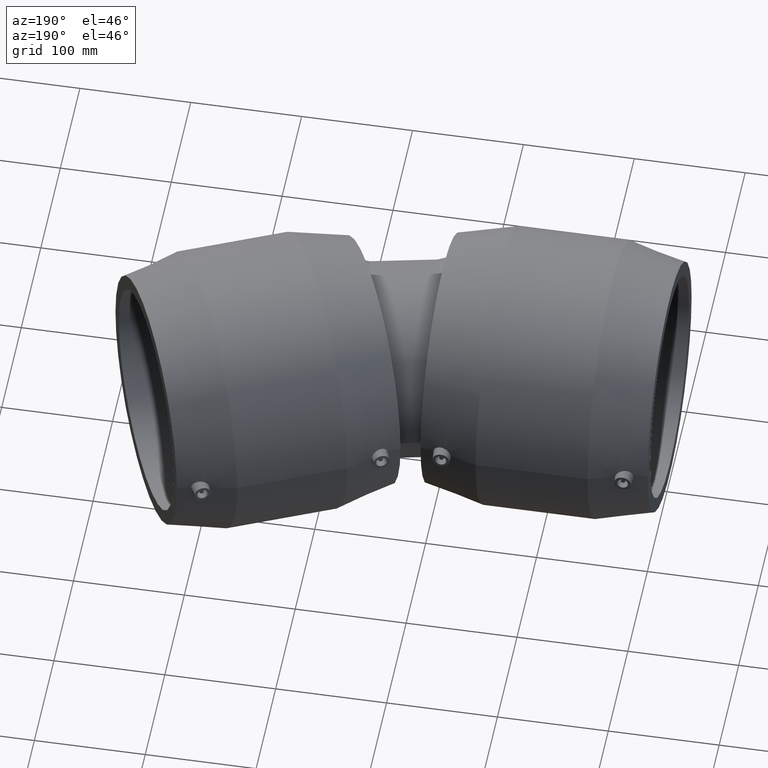
[diagram: clean part render]
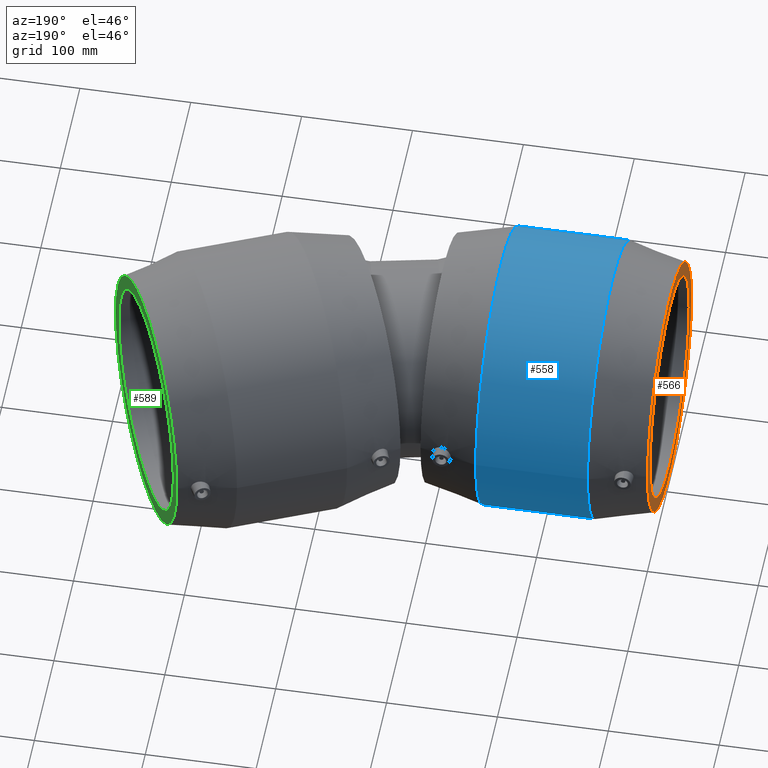
[diagram: same view with three faces highlighted in distinct colors, each labeled with its STEP entity id]
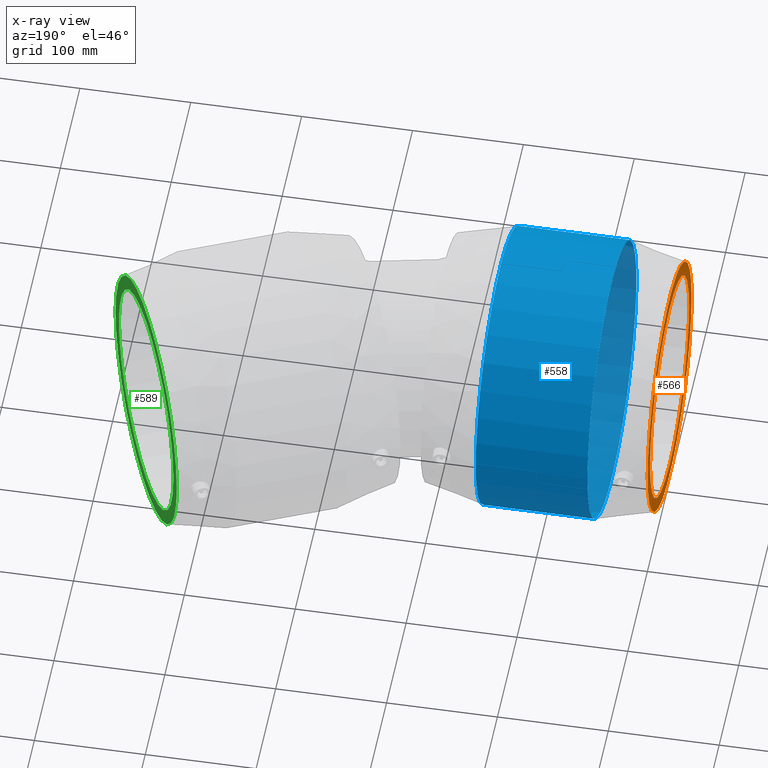
[diagram: x-ray of the same camera — body ghosted, the three highlighted faces saturated]
A machine part, auxiliary view with three faces highlighted in distinct colors.
The next image is the same camera in x-ray (body ghosted, the three faces saturated) — at least one of them is partly hidden behind the body in this view.
Their STEP definitions:

[orange] entity #566 — the highlighted planar face has unit normal (-1, -0, 0).
#34=PLANE('',#644);
#87=FACE_BOUND('',#213,.T.);
#138=FACE_OUTER_BOUND('',#212,.T.);
#212=EDGE_LOOP('',(#485));
#213=EDGE_LOOP('',(#486));
#296=CIRCLE('',#643,100.);
#297=CIRCLE('',#645,112.5);
#347=VERTEX_POINT('',#1238);
#348=VERTEX_POINT('',#1241);
#402=EDGE_CURVE('',#347,#347,#296,.T.);
#403=EDGE_CURVE('',#348,#348,#297,.T.);
#485=ORIENTED_EDGE('',*,*,#403,.F.);
#486=ORIENTED_EDGE('',*,*,#402,.T.);
#566=ADVANCED_FACE('',(#138,#87),#34,.T.);
#643=AXIS2_PLACEMENT_3D('',#1239,#793,#794);
#644=AXIS2_PLACEMENT_3D('',#1240,#795,#796);
#645=AXIS2_PLACEMENT_3D('',#1242,#797,#798);
#793=DIRECTION('center_axis',(1.,1.83697019872103E-16,0.));
#794=DIRECTION('ref_axis',(0.,0.,-1.));
#795=DIRECTION('center_axis',(-1.,-1.83697019872103E-16,0.));
#796=DIRECTION('ref_axis',(0.,0.,1.));
#797=DIRECTION('center_axis',(1.,1.83697019872103E-16,0.));
#798=DIRECTION('ref_axis',(0.,0.,-1.));
#1238=CARTESIAN_POINT('',(-102.4,100.,0.));
#1239=CARTESIAN_POINT('Origin',(-102.4,9.86076131526265E-31,0.));
#1240=CARTESIAN_POINT('Origin',(-102.4,112.5,0.));
#1241=CARTESIAN_POINT('',(-102.4,112.5,0.));
#1242=CARTESIAN_POINT('Origin',(-102.4,4.93038065763132E-30,0.));

[blue] entity #558 — the highlighted cylindrical surface (bore or boss wall) has radius 125 mm, axis along (1, 0, 0).
#52=CYLINDRICAL_SURFACE('',#628,125.);
#78=FACE_BOUND('',#196,.T.);
#130=FACE_OUTER_BOUND('',#195,.T.);
#195=EDGE_LOOP('',(#467));
#196=EDGE_LOOP('',(#468));
#289=CIRCLE('',#629,125.);
#290=CIRCLE('',#630,125.);
#340=VERTEX_POINT('',#1217);
#341=VERTEX_POINT('',#1219);
#395=EDGE_CURVE('',#340,#340,#289,.T.);
#396=EDGE_CURVE('',#341,#341,#290,.T.);
#467=ORIENTED_EDGE('',*,*,#395,.F.);
#468=ORIENTED_EDGE('',*,*,#396,.T.);
#558=ADVANCED_FACE('',(#130,#78),#52,.T.);
#628=AXIS2_PLACEMENT_3D('',#1216,#763,#764);
#629=AXIS2_PLACEMENT_3D('',#1218,#765,#766);
#630=AXIS2_PLACEMENT_3D('',#1220,#767,#768);
#763=DIRECTION('center_axis',(1.,1.83697019872103E-16,0.));
#764=DIRECTION('ref_axis',(-1.88286226120913E-16,1.,0.));
#765=DIRECTION('center_axis',(1.,1.83697019872103E-16,0.));
#766=DIRECTION('ref_axis',(0.,0.,-1.));
#767=DIRECTION('center_axis',(1.,1.83697019872103E-16,0.));
#768=DIRECTION('ref_axis',(0.,0.,-1.));
#1216=CARTESIAN_POINT('Origin',(0.,1.88105748349034E-14,0.));
#1217=CARTESIAN_POINT('',(50.4,125.,0.));
#1218=CARTESIAN_POINT('Origin',(50.4,2.80689046364573E-14,0.));
#1219=CARTESIAN_POINT('',(-50.4,125.,0.));
#1220=CARTESIAN_POINT('Origin',(-50.4,9.55224503334936E-15,0.));

[green] entity #589 — the highlighted planar face has unit normal (-0.9135, -0.4067, -0).
#44=PLANE('',#688);
#110=FACE_BOUND('',#259,.T.);
#161=FACE_OUTER_BOUND('',#258,.T.);
#258=EDGE_LOOP('',(#534));
#259=EDGE_LOOP('',(#535));
#317=CIRCLE('',#687,100.);
#318=CIRCLE('',#689,112.5);
#369=VERTEX_POINT('',#1372);
#370=VERTEX_POINT('',#1375);
#425=EDGE_CURVE('',#369,#369,#317,.T.);
#426=EDGE_CURVE('',#370,#370,#318,.T.);
#534=ORIENTED_EDGE('',*,*,#426,.T.);
#535=ORIENTED_EDGE('',*,*,#425,.F.);
#589=ADVANCED_FACE('',(#161,#110),#44,.F.);
#687=AXIS2_PLACEMENT_3D('',#1373,#881,#882);
#688=AXIS2_PLACEMENT_3D('',#1374,#883,#884);
#689=AXIS2_PLACEMENT_3D('',#1376,#885,#886);
#881=DIRECTION('center_axis',(0.913545457642601,0.406736643075801,1.19788532833232E-16));
#882=DIRECTION('ref_axis',(1.19788532833232E-16,2.54618386665284E-17,-1.));
#883=DIRECTION('center_axis',(-0.913545457642601,-0.406736643075801,-1.19788532833232E-16));
#884=DIRECTION('ref_axis',(0.,0.,1.));
#885=DIRECTION('center_axis',(0.913545457642601,0.406736643075801,1.19788532833232E-16));
#886=DIRECTION('ref_axis',(1.19788532833232E-16,2.54618386665284E-17,-1.));
#1372=CARTESIAN_POINT('',(311.980034922101,188.079195447746,2.5940317341535E-14));
#1373=CARTESIAN_POINT('Origin',(352.653699229681,96.7246496834856,2.84865012081878E-14));
#1374=CARTESIAN_POINT('Origin',(306.895826883653,199.498513668278,2.56220443582034E-14));
#1375=CARTESIAN_POINT('',(306.895826883653,199.498513668278,2.56220443582034E-14));
#1376=CARTESIAN_POINT('Origin',(352.653699229681,96.7246496834856,2.84865012081878E-14));